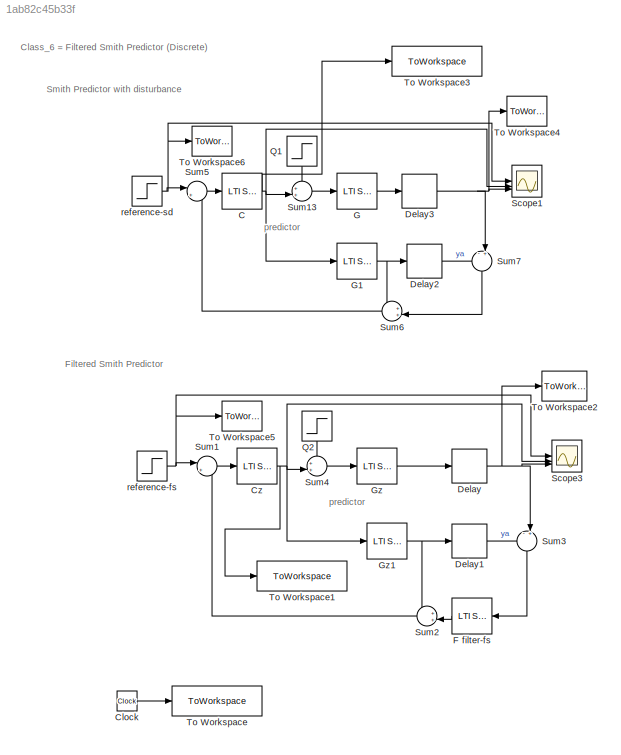
MODEL slx_1ab82c45b33f
KIND model
CONFIG AbsTol = auto
CONFIG EnableMultiTasking = off
CONFIG FixedStep = auto
CONFIG MaxStep = auto
CONFIG MinStep = auto
CONFIG RelTol = 1e-3
CONFIG SampleTimeConstraint = Unconstrained
CONFIG SolverName = VariableStepAuto
CONFIG StartTime = 0.0
CONFIG StopTime = Tsim
BLOCK [Reference] C  REF=cstblocks/LTI System
  SourceBlock = cstblocks/LTI System
  SourceType = LTI Block
BLOCK [Clock] Clock
BLOCK [Reference] Cz  REF=cstblocks/LTI System
  SourceBlock = cstblocks/LTI System
  SourceType = LTI Block
BLOCK [Delay] Delay
  DelayLength = 13
  InputPortMap = u0
  SampleTime = Ts
BLOCK [Delay] Delay1
  DelayLength = 13
  InputPortMap = u0
  SampleTime = Ts
BLOCK [Delay] Delay2
  DelayLength = 13
  InputPortMap = u0
  SampleTime = Ts
BLOCK [Delay] Delay3
  DelayLength = 13
  InputPortMap = u0
  SampleTime = Ts
BLOCK [Reference] F filter-fs  REF=cstblocks/LTI System
  NameLocation = top
  SourceBlock = cstblocks/LTI System
  SourceType = LTI Block
BLOCK [Reference] G  REF=cstblocks/LTI System
  SourceBlock = cstblocks/LTI System
  SourceType = LTI Block
BLOCK [Reference] G1  REF=cstblocks/LTI System
  SourceBlock = cstblocks/LTI System
  SourceType = LTI Block
BLOCK [Reference] Gz  REF=cstblocks/LTI System
  SourceBlock = cstblocks/LTI System
  SourceType = LTI Block
BLOCK [Reference] Gz1  REF=cstblocks/LTI System
  SourceBlock = cstblocks/LTI System
  SourceType = LTI Block
BLOCK [Step] Q1
  After = finaldisturbancevalue
  Before = initialdisturbancevalue
  NameLocation = right
  SampleTime = 0
  Time = Tdisturbance
BLOCK [Step] Q2
  After = finaldisturbancevalue
  Before = initialdisturbancevalue
  NameLocation = right
  SampleTime = 0
  Time = Tdisturbance
BLOCK [Scope] Scope1
  Floating = off
  NumInputPorts = 3
  ScopeSpecificationString = Simulink.scopes.TimeScopeBlockCfg('CurrentConfiguration', extmgr.ConfigurationSet(extmgr.Configuration('Core','General UI',true,'FigureColor',[1 1 1]),extmgr.Configuration('Core','Source UI',true),extmgr.Configuration('Sources','WiredSimulink',true,'DataLoggingVariableName','ScopeData1'),extmgr.Configuration('Visuals','Time Domain',true,'SerializedDisplays',{struct('MinYLimReal','-1.32316','MaxYLi...<+1865ch>
BLOCK [Scope] Scope3
  Floating = off
  NumInputPorts = 3
  ScopeSpecificationString = Simulink.scopes.TimeScopeBlockCfg('CurrentConfiguration', extmgr.ConfigurationSet(extmgr.Configuration('Core','General UI',true),extmgr.Configuration('Core','Source UI',true),extmgr.Configuration('Sources','WiredSimulink',true,'DataLoggingVariableName','ScopeData2'),extmgr.Configuration('Visuals','Time Domain',true,'SerializedDisplays',{struct('MinYLimReal','-1.19462','MaxYLimReal','6.06162','YLab...<+1417ch>
BLOCK [Sum] Sum1
  Inputs = |+-
BLOCK [Sum] Sum13
  Inputs = ++|
BLOCK [Sum] Sum2
  Inputs = ++|
  NameLocation = top
BLOCK [Sum] Sum3
  Inputs = -+|
  NameLocation = left
BLOCK [Sum] Sum4
  Inputs = ++|
BLOCK [Sum] Sum5
  Inputs = |+-
BLOCK [Sum] Sum6
  Inputs = ++|
  NameLocation = top
BLOCK [Sum] Sum7
  Inputs = -+|
  NameLocation = left
BLOCK [ToWorkspace] To Workspace
  FixptAsFi = on
  MaxDataPoints = inf
  SampleTime = Ts
  VariableName = cpi_time
BLOCK [ToWorkspace] To Workspace1
  FixptAsFi = on
  MaxDataPoints = inf
  SampleTime = Ts
  VariableName = cSignal2A
BLOCK [ToWorkspace] To Workspace2
  FixptAsFi = on
  MaxDataPoints = inf
  SampleTime = Ts
  VariableName = y2
BLOCK [ToWorkspace] To Workspace3
  FixptAsFi = on
  MaxDataPoints = inf
  SampleTime = Ts
  VariableName = cSignal1A
BLOCK [ToWorkspace] To Workspace4
  FixptAsFi = on
  MaxDataPoints = inf
  SampleTime = Ts
  VariableName = y1
BLOCK [ToWorkspace] To Workspace5
  FixptAsFi = on
  MaxDataPoints = inf
  SampleTime = Ts
  VariableName = u2
BLOCK [ToWorkspace] To Workspace6
  FixptAsFi = on
  MaxDataPoints = inf
  SampleTime = Ts
  VariableName = u1
BLOCK [Step] reference-fs
  SampleTime = 0
  Time = 0
BLOCK [Step] reference-sd
  SampleTime = 0
  Time = 0
ANNOTATION (root): Class_6 = Filtered Smith Predictor (Discrete)
ANNOTATION (root): Filtered Smith Predictor
ANNOTATION (root): Smith Predictor with disturbance
ANNOTATION (root): predictor
NET C:1 -> G1:1, Scope1:2, Sum13:2, To Workspace3:1
LINE Clock:1 -> To Workspace:1
NET Cz:1 -> Gz1:1, Scope3:2, Sum4:2, To Workspace1:1
LINE Delay1:1 -> Sum3:1
LINE Delay2:1 -> Sum7:1
NET Delay3:1 -> Scope1:3, Sum7:2, To Workspace4:1
NET Delay:1 -> Scope3:3, Sum3:2, To Workspace2:1
LINE F filter-fs:1 -> Sum2:2
NET G1:1 -> Delay2:1, Sum6:1
LINE G:1 -> Delay3:1
NET Gz1:1 -> Delay1:1, Sum2:1
LINE Gz:1 -> Delay:1
LINE Q1:1 -> Sum13:1
LINE Q2:1 -> Sum4:1
LINE Sum13:1 -> G:1
LINE Sum1:1 -> Cz:1
LINE Sum2:1 -> Sum1:2
LINE Sum3:1 -> F filter-fs:1
LINE Sum4:1 -> Gz:1
LINE Sum5:1 -> C:1
LINE Sum6:1 -> Sum5:2
LINE Sum7:1 -> Sum6:2
NET reference-fs:1 -> Scope3:1, Sum1:1, To Workspace5:1
NET reference-sd:1 -> Scope1:1, Sum5:1, To Workspace6:1
note: NET lines group one-source signal fan-out (src -> all destinations, sorted); 1:1 wires keep LINE
